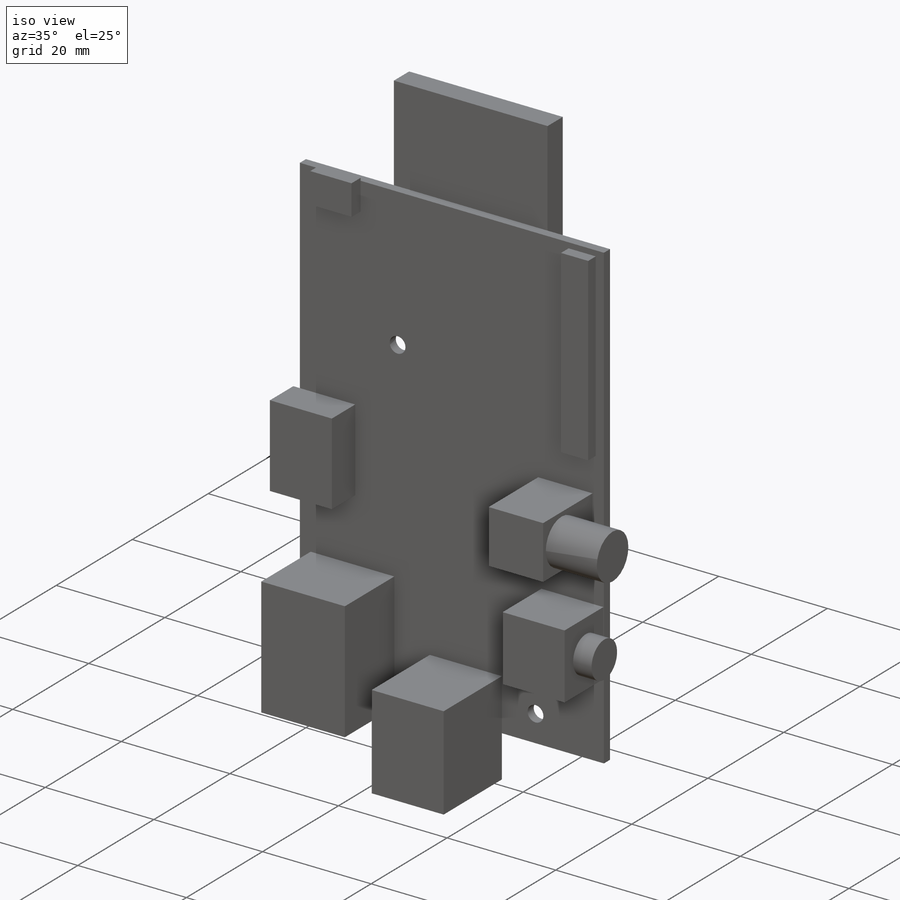
[diagram: iso view]
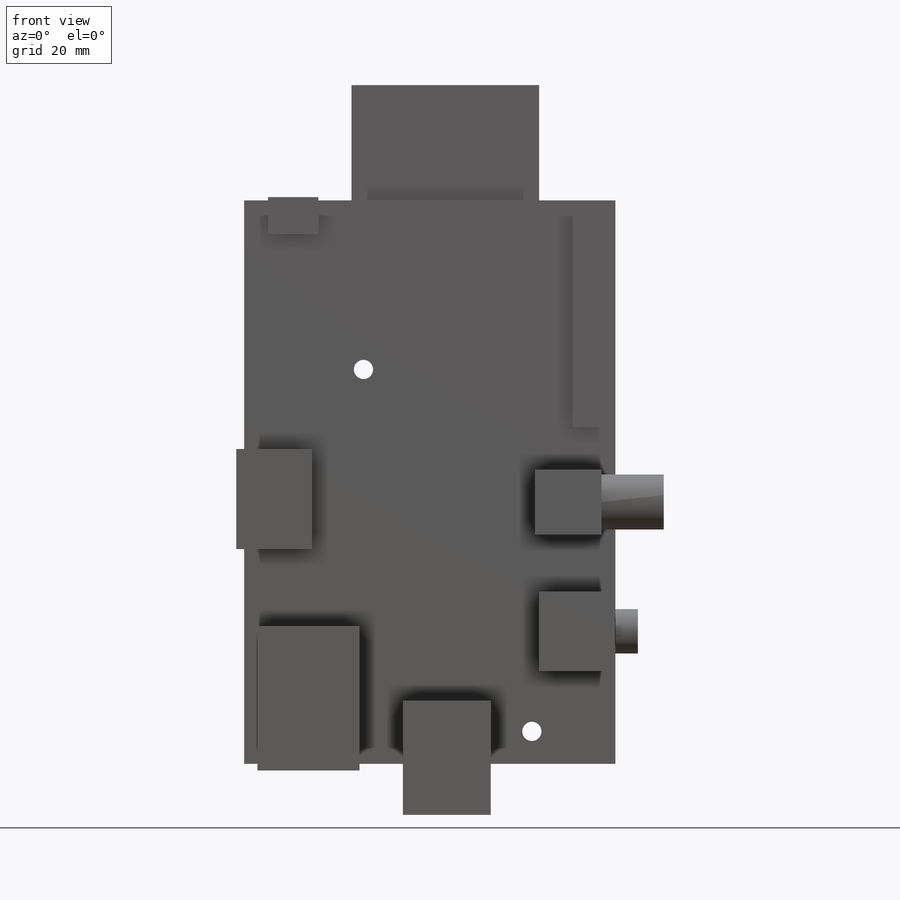
[diagram: front view]
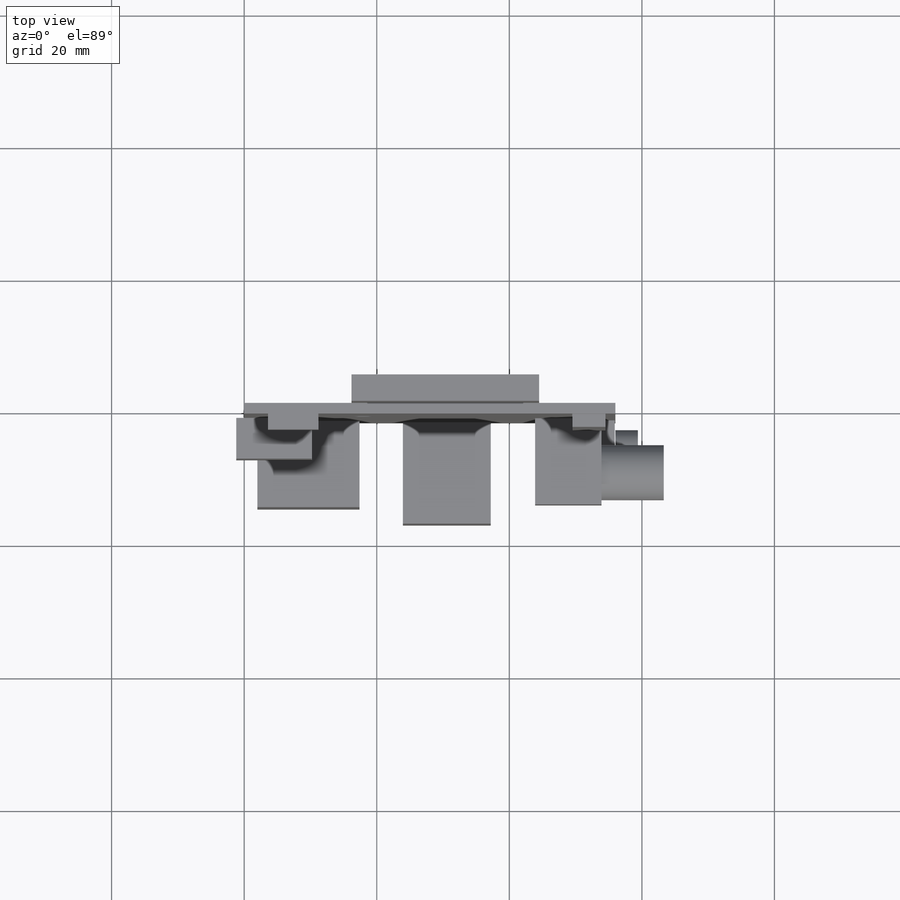
[diagram: top view]
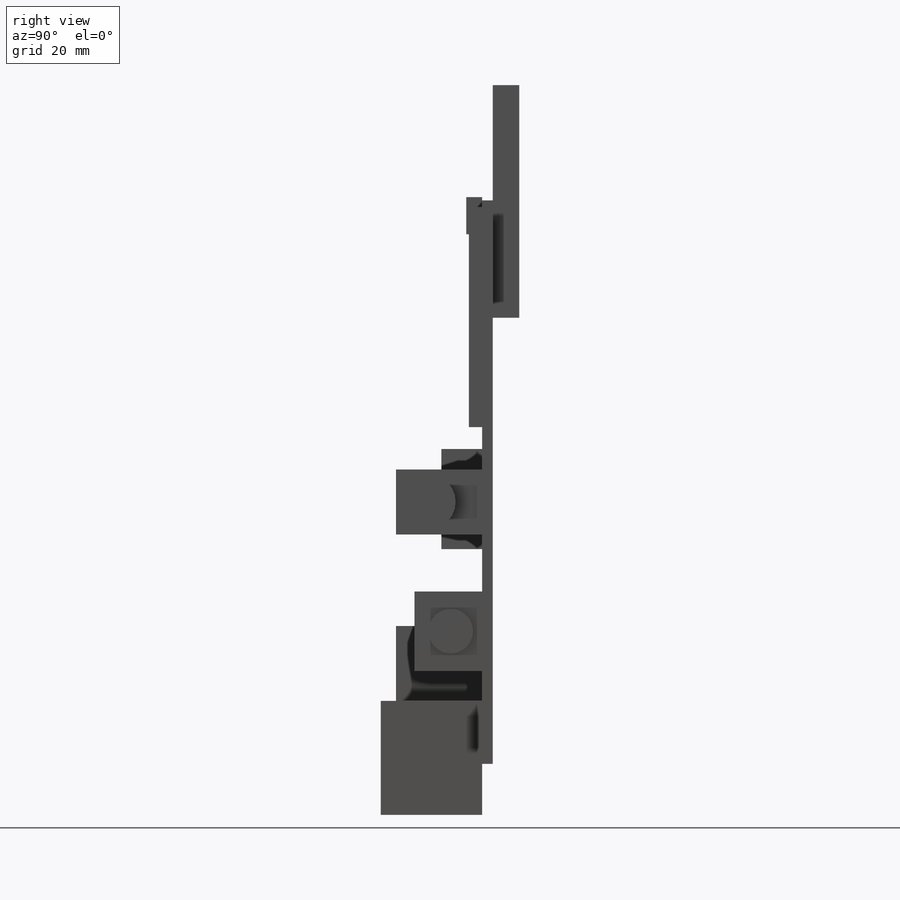
[diagram: right view]
SOLIDWORKS PART (.sldprt)
format: sldprt  version: not decoded by parser v0  size: 353,280 bytes
history: native  units: mm
features: sketch x11, extrude x11, plane x3, material x1 (+13 scaffold rows collapsed)
feature tree (39):
  scaffold x13  (default folders/planes/origin — collapsed)
  material  "Material <sin especificar>"
  plane  "Alzado"
  plane  "Planta"
  plane  "Vista lateral"
  sketch  "Croquis1"  dims[c1.D5=2.9mm c1.D6=2.9mm c1.D1=85.0mm c1.D2=56.0mm c1.D3=4.9mm c1.D4=12.6mm c2.D6=18.0mm c2.D7=25.5mm]
  extrude  "Saliente-Extruir1"  Depth=1.6mm
  sketch  "Croquis2"  dims[D1=0.5mm D2=3.6mm D3=7.6mm D4=5.6mm]
  extrude  "Saliente-Extruir2"  Depth=2.4mm
  sketch  "Croquis3"  dims[D1=37.5mm D2=1.2mm D3=15.1mm D4=11.4mm]
  extrude  "Saliente-Extruir3"  Depth=6.15mm
  sketch  "Croquis4"  dims[D1=1.0mm D2=2.0mm D3=21.8mm D4=15.4mm]
  extrude  "Saliente-Extruir4"  Depth=13mm
  sketch  "Croquis5"  dims[D1=7.7mm D2=18.8mm D3=13.25mm D4=17.2mm]
  extrude  "Saliente-Extruir5"  Depth=15.3mm
  sketch  "Croquis6"  dims[D1=14.0mm D2=11.4mm D3=12.0mm D4=0.1mm]
  extrude  "Saliente-Extruir6"  Depth=10.2mm
  sketch  "Croquis7"  dims[D1=2.1mm D2=10.0mm D3=9.8mm D4=40.6mm]
  extrude  "Saliente-Extruir7"  Depth=13mm
  sketch  "Croquis8"  dims[D1=5.0mm D2=33.2mm D3=1.5mm D4=1.0mm]
  extrude  "Saliente-Extruir8"  Depth=2mm
  sketch  "Croquis10"  dims[D1=17.7mm D2=28.3mm D3=11.5mm D4=17.4mm]
  extrude  "Saliente-Extruir9"  Depth=4mm
  sketch  "Croquis11"  dims[D2=6.7mm D1=3.0mm]
  extrude  "Saliente-Extruir10"  Depth=3.4mm
  sketch  "Croquis12"  dims[D2=8.3mm D1=4.0mm]
  extrude  "Saliente-Extruir11"  Depth=9.4mm
decode coverage: 22 of 22 modeling features carry decoded parameters
note: suppression state not decoded; provenance and decode notes live in map.json
